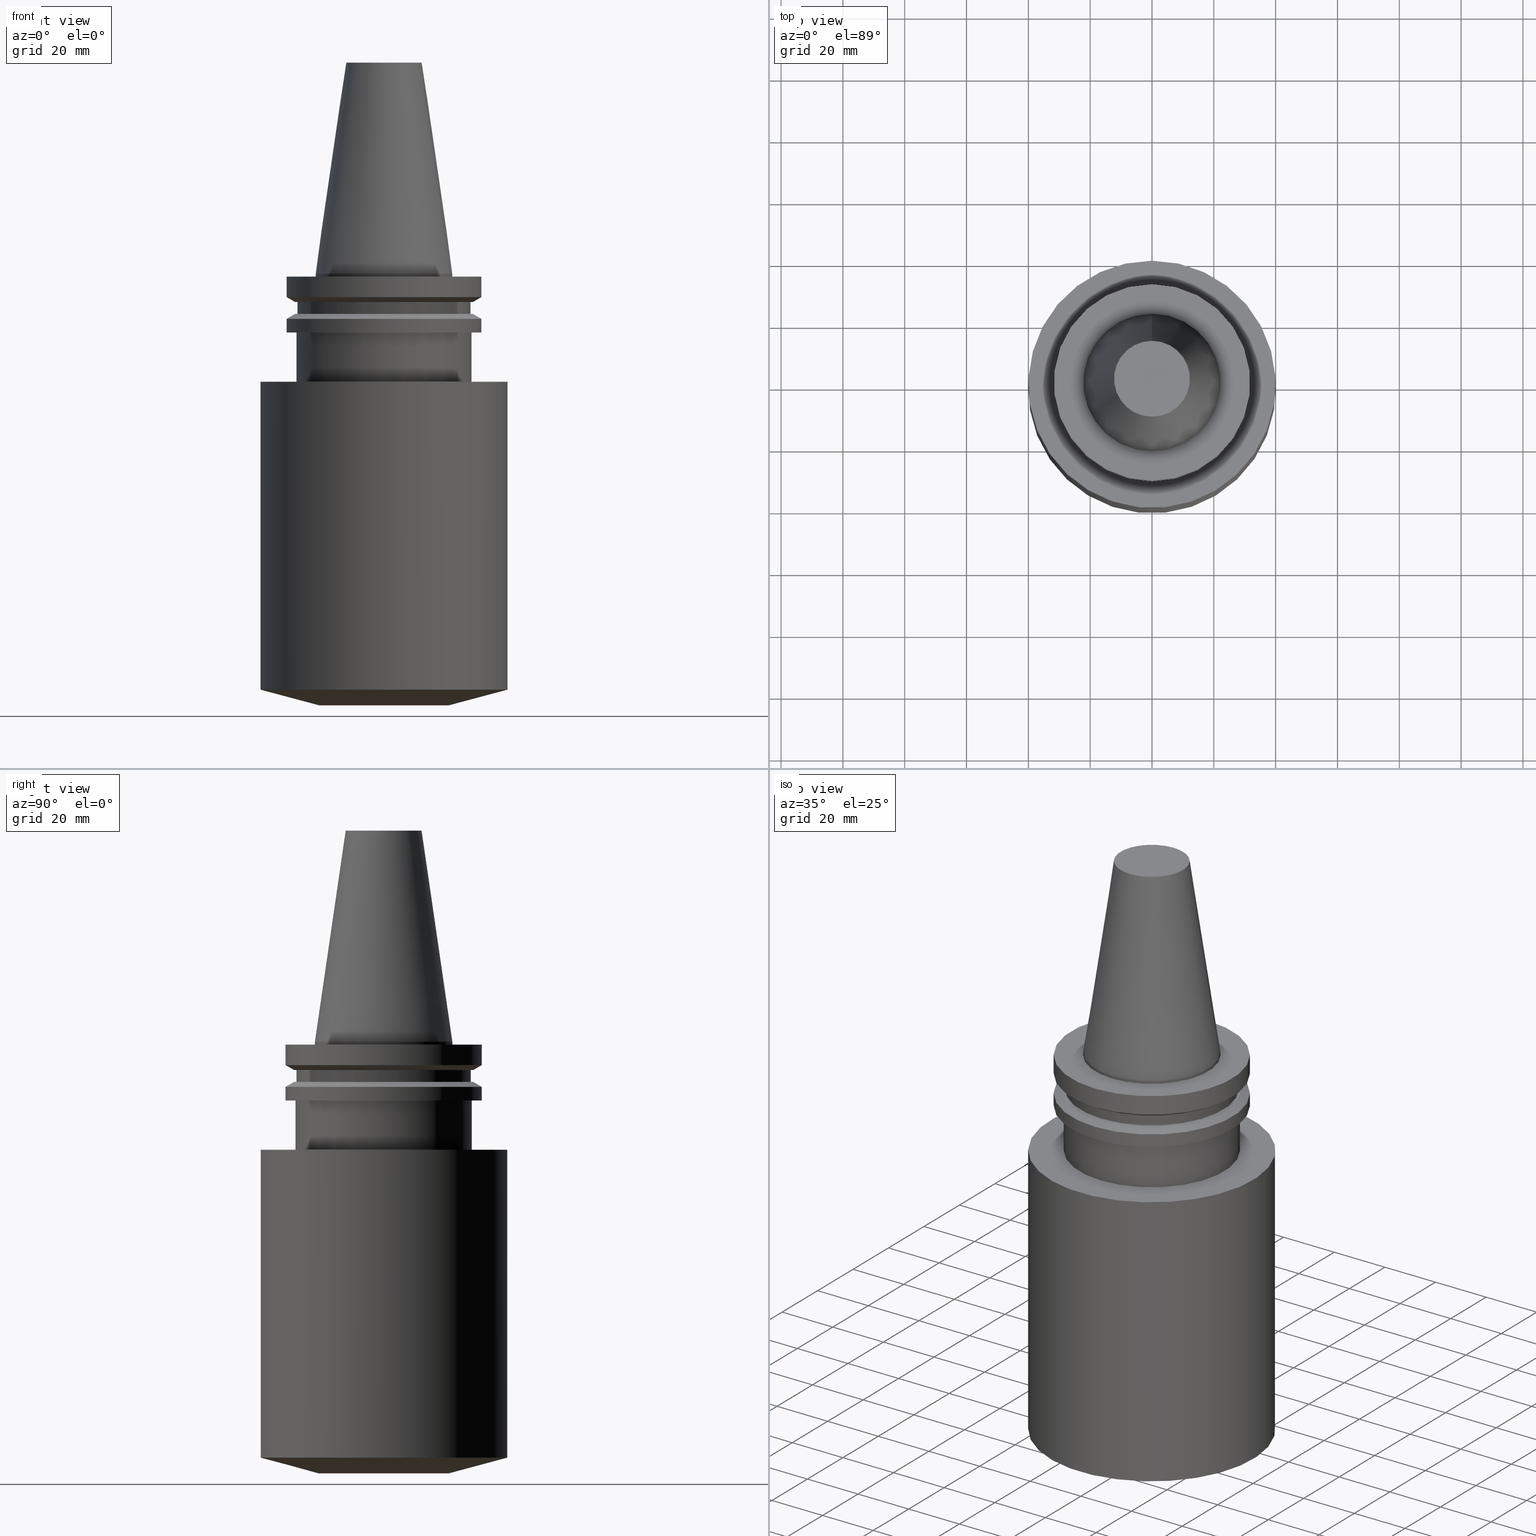
[diagram: canonical four-view strip — front | top / right | iso, engineering-drawing reading convention]
A machine part, canonical four-view strip (front | top / right | iso — engineering-drawing reading convention). The complete STEP part file that produces these views, byte-faithful:
ISO-10303-21;
HEADER;
FILE_DESCRIPTION((''),'1');
FILE_NAME('V:/01_Dxf_Field-HP\X2\FF71FF6FFF8CFF9F5916\X0\2013/BIGKAISER\X2\FF76FF80FF9BFF78FF9E63B28F095206\X0\_BKUS_201803/BCV40Y-BSL/BCV40Y-BSL1.500-5.5.stp','2018-03-13T06:29:31',(''),(''),'Spatial Interop R21 SP3','Kubotek KeyCreator 2011 V10.0.2 (22737)',' ');
FILE_SCHEMA(('automotive_design'));
ENDSEC;
DATA;
#1=MECHANICAL_DESIGN_GEOMETRIC_PRESENTATION_REPRESENTATION(' ',(#10,#11,#12,#13,#14,#15,#16,#17,#18,#19,#20,#21,#22,#23,#24,#25,#26,#27,#28,#29,#30,#31,#32,#33,#34,#35,#36,#37,#38,#39,#40,#41,#42,#43),#6);
#2=PRODUCT_DEFINITION_CONTEXT('',#44,'design');
#3=APPLICATION_PROTOCOL_DEFINITION('INTERNATIONAL STANDARD','automotive_design',1994,#44);
#4=PRODUCT_CATEGORY_RELATIONSHIP('NONE','NONE',#45,#46);
#5=SHAPE_DEFINITION_REPRESENTATION(#47,#48);
#6= (GEOMETRIC_REPRESENTATION_CONTEXT(3)GLOBAL_UNCERTAINTY_ASSIGNED_CONTEXT((#51))GLOBAL_UNIT_ASSIGNED_CONTEXT((#53,#54,#55))REPRESENTATION_CONTEXT('NONE','WORKSPACE'));
#10=STYLED_ITEM('',(#57),#58);
#11=STYLED_ITEM('',(#59,#60),#61);
#12=STYLED_ITEM('',(#62,#63),#64);
#13=STYLED_ITEM('',(#65),#66);
#14=STYLED_ITEM('',(#67,#68),#69);
#15=STYLED_ITEM('',(#70,#71),#72);
#16=STYLED_ITEM('',(#73,#74),#75);
#17=STYLED_ITEM('',(#76),#77);
#18=STYLED_ITEM('',(#78),#79);
#19=STYLED_ITEM('',(#80),#81);
#20=STYLED_ITEM('',(#82,#83),#84);
#21=STYLED_ITEM('',(#85),#86);
#22=STYLED_ITEM('',(#87),#88);
#23=STYLED_ITEM('',(#89,#90),#91);
#24=STYLED_ITEM('',(#92),#93);
#25=STYLED_ITEM('',(#94,#95),#96);
#26=STYLED_ITEM('',(#97,#98),#99);
#27=STYLED_ITEM('',(#100,#101),#102);
#28=STYLED_ITEM('',(#103),#104);
#29=STYLED_ITEM('',(#105),#106);
#30=STYLED_ITEM('',(#107),#108);
#31=STYLED_ITEM('',(#109),#110);
#32=STYLED_ITEM('',(#111,#112),#113);
#33=STYLED_ITEM('',(#114,#115),#116);
#34=STYLED_ITEM('',(#117,#118),#119);
#35=STYLED_ITEM('',(#120),#121);
#36=STYLED_ITEM('',(#122,#123),#124);
#37=STYLED_ITEM('',(#125),#126);
#38=STYLED_ITEM('',(#127,#128),#129);
#39=STYLED_ITEM('',(#130,#131),#132);
#40=STYLED_ITEM('',(#133,#134),#135);
#41=STYLED_ITEM('',(#136),#137);
#42=STYLED_ITEM('',(#138),#139);
#43=STYLED_ITEM('',(#140,#141),#142);
#44=APPLICATION_CONTEXT(' ');
#45=PRODUCT_CATEGORY('part','NONE');
#46=PRODUCT_RELATED_PRODUCT_CATEGORY('detail',' ',(#143));
#47=PRODUCT_DEFINITION_SHAPE('NONE','NONE',#144);
#48=ADVANCED_BREP_SHAPE_REPRESENTATION('Unnamed[1]',(#96,#145),#6);
#51=UNCERTAINTY_MEASURE_WITH_UNIT(LENGTH_MEASURE(1.0E-006),#53,'','');
#53= (CONVERSION_BASED_UNIT('MILLIMETRE',#148)LENGTH_UNIT()NAMED_UNIT(#151));
#54= (NAMED_UNIT(#153)PLANE_ANGLE_UNIT()SI_UNIT($,.RADIAN.));
#55= (NAMED_UNIT(#153)SOLID_ANGLE_UNIT()SI_UNIT($,.STERADIAN.));
#57=PRESENTATION_STYLE_ASSIGNMENT((#159));
#58=EDGE_CURVE('Unnamed[1]',#160,#160,#161,.T.);
#59=PRESENTATION_STYLE_ASSIGNMENT((#162));
#60=PRESENTATION_STYLE_ASSIGNMENT((#163));
#61=ADVANCED_FACE('Unnamed[1]',(#164,#165),#166,.T.);
#62=PRESENTATION_STYLE_ASSIGNMENT((#167));
#63=PRESENTATION_STYLE_ASSIGNMENT((#168));
#64=ADVANCED_FACE('Unnamed[1]',(#169,#170),#171,.T.);
#65=PRESENTATION_STYLE_ASSIGNMENT((#172));
#66=EDGE_CURVE('Unnamed[1]',#173,#173,#174,.T.);
#67=PRESENTATION_STYLE_ASSIGNMENT((#175));
#68=PRESENTATION_STYLE_ASSIGNMENT((#176));
#69=ADVANCED_FACE('Unnamed[1]',(#177,#178),#179,.T.);
#70=PRESENTATION_STYLE_ASSIGNMENT((#180));
#71=PRESENTATION_STYLE_ASSIGNMENT((#181));
#72=ADVANCED_FACE('Unnamed[1]',(#182,#183),#184,.T.);
#73=PRESENTATION_STYLE_ASSIGNMENT((#185));
#74=PRESENTATION_STYLE_ASSIGNMENT((#186));
#75=ADVANCED_FACE('Unnamed[1]',(#187,#188),#189,.T.);
#76=PRESENTATION_STYLE_ASSIGNMENT((#190));
#77=EDGE_CURVE('Unnamed[1]',#191,#191,#192,.T.);
#78=PRESENTATION_STYLE_ASSIGNMENT((#193));
#79=EDGE_CURVE('Unnamed[1]',#194,#194,#195,.T.);
#80=PRESENTATION_STYLE_ASSIGNMENT((#196));
#81=EDGE_CURVE('Unnamed[1]',#197,#197,#198,.T.);
#82=PRESENTATION_STYLE_ASSIGNMENT((#199));
#83=PRESENTATION_STYLE_ASSIGNMENT((#200));
#84=ADVANCED_FACE('Unnamed[1]',(#201),#202,.T.);
#85=PRESENTATION_STYLE_ASSIGNMENT((#203));
#86=EDGE_CURVE('Unnamed[1]',#204,#204,#205,.T.);
#87=PRESENTATION_STYLE_ASSIGNMENT((#206));
#88=EDGE_CURVE('Unnamed[1]',#207,#207,#208,.T.);
#89=PRESENTATION_STYLE_ASSIGNMENT((#209));
#90=PRESENTATION_STYLE_ASSIGNMENT((#210));
#91=ADVANCED_FACE('Unnamed[1]',(#211,#212),#213,.T.);
#92=PRESENTATION_STYLE_ASSIGNMENT((#214));
#93=EDGE_CURVE('Unnamed[1]',#215,#215,#216,.T.);
#94=PRESENTATION_STYLE_ASSIGNMENT((#217));
#95=PRESENTATION_STYLE_ASSIGNMENT((#218));
#96=MANIFOLD_SOLID_BREP('Unnamed[1]',#219);
#97=PRESENTATION_STYLE_ASSIGNMENT((#220));
#98=PRESENTATION_STYLE_ASSIGNMENT((#221));
#99=ADVANCED_FACE('Unnamed[1]',(#222,#223),#224,.T.);
#100=PRESENTATION_STYLE_ASSIGNMENT((#225));
#101=PRESENTATION_STYLE_ASSIGNMENT((#226));
#102=ADVANCED_FACE('Unnamed[1]',(#227,#228),#229,.T.);
#103=PRESENTATION_STYLE_ASSIGNMENT((#230));
#104=EDGE_CURVE('Unnamed[1]',#231,#231,#232,.T.);
#105=PRESENTATION_STYLE_ASSIGNMENT((#233));
#106=EDGE_CURVE('Unnamed[1]',#234,#234,#235,.T.);
#107=PRESENTATION_STYLE_ASSIGNMENT((#236));
#108=EDGE_CURVE('Unnamed[1]',#237,#237,#238,.T.);
#109=PRESENTATION_STYLE_ASSIGNMENT((#239));
#110=EDGE_CURVE('Unnamed[1]',#240,#240,#241,.T.);
#111=PRESENTATION_STYLE_ASSIGNMENT((#242));
#112=PRESENTATION_STYLE_ASSIGNMENT((#243));
#113=ADVANCED_FACE('Unnamed[1]',(#244,#245),#246,.T.);
#114=PRESENTATION_STYLE_ASSIGNMENT((#247));
#115=PRESENTATION_STYLE_ASSIGNMENT((#248));
#116=ADVANCED_FACE('Unnamed[1]',(#249,#250),#251,.T.);
#117=PRESENTATION_STYLE_ASSIGNMENT((#252));
#118=PRESENTATION_STYLE_ASSIGNMENT((#253));
#119=ADVANCED_FACE('Unnamed[1]',(#254,#255),#256,.T.);
#120=PRESENTATION_STYLE_ASSIGNMENT((#257));
#121=EDGE_CURVE('Unnamed[1]',#258,#258,#259,.T.);
#122=PRESENTATION_STYLE_ASSIGNMENT((#260));
#123=PRESENTATION_STYLE_ASSIGNMENT((#261));
#124=ADVANCED_FACE('Unnamed[1]',(#262,#263),#264,.T.);
#125=PRESENTATION_STYLE_ASSIGNMENT((#265));
#126=EDGE_CURVE('Unnamed[1]',#266,#266,#267,.T.);
#127=PRESENTATION_STYLE_ASSIGNMENT((#268));
#128=PRESENTATION_STYLE_ASSIGNMENT((#269));
#129=ADVANCED_FACE('Unnamed[1]',(#270,#271),#272,.T.);
#130=PRESENTATION_STYLE_ASSIGNMENT((#273));
#131=PRESENTATION_STYLE_ASSIGNMENT((#274));
#132=ADVANCED_FACE('Unnamed[1]',(#275,#276),#277,.T.);
#133=PRESENTATION_STYLE_ASSIGNMENT((#278));
#134=PRESENTATION_STYLE_ASSIGNMENT((#279));
#135=ADVANCED_FACE('Unnamed[1]',(#280),#281,.T.);
#136=PRESENTATION_STYLE_ASSIGNMENT((#282));
#137=EDGE_CURVE('Unnamed[1]',#283,#283,#284,.T.);
#138=PRESENTATION_STYLE_ASSIGNMENT((#285));
#139=EDGE_CURVE('Unnamed[1]',#286,#286,#287,.T.);
#140=PRESENTATION_STYLE_ASSIGNMENT((#288));
#141=PRESENTATION_STYLE_ASSIGNMENT((#289));
#142=ADVANCED_FACE('Unnamed[1]',(#290,#291),#292,.T.);
#143=PRODUCT('Unnamed[1]','Unnamed[1]','PART-Unnamed[1]-DESC',(#293));
#144=PRODUCT_DEFINITION('NONE','NONE',#294,#2);
#145=AXIS2_PLACEMENT_3D('',#295,#296,#297);
#148=LENGTH_MEASURE_WITH_UNIT(LENGTH_MEASURE(1.0),#298);
#151=DIMENSIONAL_EXPONENTS(1.0,0.0,0.0,0.0,0.0,0.0,0.0);
#153=DIMENSIONAL_EXPONENTS(0.0,0.0,0.0,0.0,0.0,0.0,0.0);
#159=CURVE_STYLE('',#299,POSITIVE_LENGTH_MEASURE(1000.0),#300);
#160=VERTEX_POINT('',#301);
#161=CIRCLE('',#302,28.95591319);
#162=SURFACE_STYLE_USAGE(.BOTH.,#303);
#163=CURVE_STYLE('',#304,POSITIVE_LENGTH_MEASURE(1000.0),#305);
#164=FACE_BOUND('',#306,.T.);
#165=FACE_BOUND('',#307,.T.);
#166=CYLINDRICAL_SURFACE('',#308,40.0000000000216);
#167=SURFACE_STYLE_USAGE(.BOTH.,#309);
#168=CURVE_STYLE('',#310,POSITIVE_LENGTH_MEASURE(1000.0),#311);
#169=FACE_OUTER_BOUND('',#312,.T.);
#170=FACE_BOUND('',#313,.T.);
#171=PLANE('',#314);
#172=CURVE_STYLE('',#315,POSITIVE_LENGTH_MEASURE(1000.0),#316);
#173=VERTEX_POINT('',#317);
#174=CIRCLE('',#318,31.75);
#175=SURFACE_STYLE_USAGE(.BOTH.,#319);
#176=CURVE_STYLE('',#320,POSITIVE_LENGTH_MEASURE(1000.0),#321);
#177=FACE_BOUND('',#322,.T.);
#178=FACE_BOUND('',#323,.T.);
#179=CONICAL_SURFACE('',#324,30.5000000000034,1.30899693899574);
#180=SURFACE_STYLE_USAGE(.BOTH.,#325);
#181=CURVE_STYLE('',#326,POSITIVE_LENGTH_MEASURE(1000.0),#327);
#182=FACE_BOUND('',#328,.T.);
#183=FACE_BOUND('',#329,.T.);
#184=CYLINDRICAL_SURFACE('',#330,28.18);
#185=SURFACE_STYLE_USAGE(.BOTH.,#331);
#186=CURVE_STYLE('',#332,POSITIVE_LENGTH_MEASURE(1000.0),#333);
#187=FACE_BOUND('',#334,.T.);
#188=FACE_BOUND('',#335,.T.);
#189=CYLINDRICAL_SURFACE('',#336,28.5000000000037);
#190=CURVE_STYLE('',#337,POSITIVE_LENGTH_MEASURE(1000.0),#338);
#191=VERTEX_POINT('',#339);
#192=CIRCLE('',#340,31.75);
#193=CURVE_STYLE('',#341,POSITIVE_LENGTH_MEASURE(1000.0),#342);
#194=VERTEX_POINT('',#343);
#195=CIRCLE('',#344,22.225);
#196=CURVE_STYLE('',#345,POSITIVE_LENGTH_MEASURE(1000.0),#346);
#197=VERTEX_POINT('',#347);
#198=CIRCLE('',#348,28.5000000000041);
#199=SURFACE_STYLE_USAGE(.BOTH.,#349);
#200=CURVE_STYLE('',#350,POSITIVE_LENGTH_MEASURE(1000.0),#351);
#201=FACE_OUTER_BOUND('',#352,.T.);
#202=PLANE('',#353);
#203=CURVE_STYLE('',#354,POSITIVE_LENGTH_MEASURE(1000.0),#355);
#204=VERTEX_POINT('',#356);
#205=CIRCLE('',#357,31.75);
#206=CURVE_STYLE('',#358,POSITIVE_LENGTH_MEASURE(1000.0),#359);
#207=VERTEX_POINT('',#360);
#208=CIRCLE('',#361,28.18);
#209=SURFACE_STYLE_USAGE(.BOTH.,#362);
#210=CURVE_STYLE('',#363,POSITIVE_LENGTH_MEASURE(1000.0),#364);
#211=FACE_BOUND('',#365,.T.);
#212=FACE_BOUND('',#366,.T.);
#213=CYLINDRICAL_SURFACE('',#367,31.75);
#214=CURVE_STYLE('',#368,POSITIVE_LENGTH_MEASURE(1000.0),#369);
#215=VERTEX_POINT('',#370);
#216=CIRCLE('',#371,12.2718750014769);
#217=SURFACE_STYLE_USAGE(.BOTH.,#372);
#218=CURVE_STYLE('',#373,POSITIVE_LENGTH_MEASURE(1000.0),#374);
#219=CLOSED_SHELL('',(#84,#119,#113,#124,#99,#142,#102,#72,#116,#129,#91,#132,#75,#64,#61,#69,#135));
#220=SURFACE_STYLE_USAGE(.BOTH.,#375);
#221=CURVE_STYLE('',#376,POSITIVE_LENGTH_MEASURE(1000.0),#377);
#222=FACE_BOUND('',#378,.T.);
#223=FACE_BOUND('',#379,.T.);
#224=CYLINDRICAL_SURFACE('',#380,31.75);
#225=SURFACE_STYLE_USAGE(.BOTH.,#381);
#226=CURVE_STYLE('',#382,POSITIVE_LENGTH_MEASURE(1000.0),#383);
#227=FACE_BOUND('',#384,.T.);
#228=FACE_OUTER_BOUND('',#385,.T.);
#229=PLANE('',#386);
#230=CURVE_STYLE('',#387,POSITIVE_LENGTH_MEASURE(1000.0),#388);
#231=VERTEX_POINT('',#389);
#232=CIRCLE('',#390,40.0000000000015);
#233=CURVE_STYLE('',#391,POSITIVE_LENGTH_MEASURE(1000.0),#392);
#234=VERTEX_POINT('',#393);
#235=CIRCLE('',#394,28.98016191);
#236=CURVE_STYLE('',#395,POSITIVE_LENGTH_MEASURE(1000.0),#396);
#237=VERTEX_POINT('',#397);
#238=CIRCLE('',#398,28.5000000000033);
#239=CURVE_STYLE('',#399,POSITIVE_LENGTH_MEASURE(1000.0),#400);
#240=VERTEX_POINT('',#401);
#241=CIRCLE('',#402,40.0000000000418);
#242=SURFACE_STYLE_USAGE(.BOTH.,#403);
#243=CURVE_STYLE('',#404,POSITIVE_LENGTH_MEASURE(1000.0),#405);
#244=FACE_BOUND('',#406,.T.);
#245=FACE_BOUND('',#407,.T.);
#246=CYLINDRICAL_SURFACE('',#408,22.225);
#247=SURFACE_STYLE_USAGE(.BOTH.,#409);
#248=CURVE_STYLE('',#410,POSITIVE_LENGTH_MEASURE(1000.0),#411);
#249=FACE_OUTER_BOUND('',#412,.T.);
#250=FACE_BOUND('',#413,.T.);
#251=PLANE('',#414);
#252=SURFACE_STYLE_USAGE(.BOTH.,#415);
#253=CURVE_STYLE('',#416,POSITIVE_LENGTH_MEASURE(1000.0),#417);
#254=FACE_BOUND('',#418,.T.);
#255=FACE_BOUND('',#419,.T.);
#256=CONICAL_SURFACE('',#420,17.2484375007384,0.144812498217751);
#257=CURVE_STYLE('',#421,POSITIVE_LENGTH_MEASURE(1000.0),#422);
#258=VERTEX_POINT('',#423);
#259=CIRCLE('',#424,28.18);
#260=SURFACE_STYLE_USAGE(.BOTH.,#425);
#261=CURVE_STYLE('',#426,POSITIVE_LENGTH_MEASURE(1000.0),#427);
#262=FACE_OUTER_BOUND('',#428,.T.);
#263=FACE_BOUND('',#429,.T.);
#264=PLANE('',#430);
#265=CURVE_STYLE('',#431,POSITIVE_LENGTH_MEASURE(1000.0),#432);
#266=VERTEX_POINT('',#433);
#267=CIRCLE('',#434,21.0000000000052);
#268=SURFACE_STYLE_USAGE(.BOTH.,#435);
#269=CURVE_STYLE('',#436,POSITIVE_LENGTH_MEASURE(1000.0),#437);
#270=FACE_BOUND('',#438,.T.);
#271=FACE_BOUND('',#439,.T.);
#272=CONICAL_SURFACE('',#440,30.352956595,1.04719755170464);
#273=SURFACE_STYLE_USAGE(.BOTH.,#441);
#274=CURVE_STYLE('',#442,POSITIVE_LENGTH_MEASURE(1000.0),#443);
#275=FACE_BOUND('',#444,.T.);
#276=FACE_OUTER_BOUND('',#445,.T.);
#277=PLANE('',#446);
#278=SURFACE_STYLE_USAGE(.BOTH.,#447);
#279=CURVE_STYLE('',#448,POSITIVE_LENGTH_MEASURE(1000.0),#449);
#280=FACE_OUTER_BOUND('',#450,.T.);
#281=PLANE('',#451);
#282=CURVE_STYLE('',#452,POSITIVE_LENGTH_MEASURE(1000.0),#453);
#283=VERTEX_POINT('',#454);
#284=CIRCLE('',#455,22.225);
#285=CURVE_STYLE('',#456,POSITIVE_LENGTH_MEASURE(1000.0),#457);
#286=VERTEX_POINT('',#458);
#287=CIRCLE('',#459,31.75);
#288=SURFACE_STYLE_USAGE(.BOTH.,#460);
#289=CURVE_STYLE('',#461,POSITIVE_LENGTH_MEASURE(1000.0),#462);
#290=FACE_BOUND('',#463,.T.);
#291=FACE_BOUND('',#464,.T.);
#292=CONICAL_SURFACE('',#465,30.365080955,1.04719755034994);
#293=PRODUCT_CONTEXT('',#44,'mechanical');
#294=PRODUCT_DEFINITION_FORMATION_WITH_SPECIFIED_SOURCE(' ','NONE',#143,.NOT_KNOWN.);
#295=CARTESIAN_POINT('',(0.0,0.0,0.0));
#296=DIRECTION('',(0.0,0.0,1.0));
#297=DIRECTION('',(1.0,0.0,0.0));
#298= (NAMED_UNIT(#151)LENGTH_UNIT()SI_UNIT(.MILLI.,.METRE.));
#299=DRAUGHTING_PRE_DEFINED_CURVE_FONT('continuous');
#300=COLOUR_RGB('',0.0,1.0,0.0);
#301=CARTESIAN_POINT('',(7.98469713044073E-016,28.95591319,-13.04));
#302=AXIS2_PLACEMENT_3D('',#467,#468,#469);
#303=SURFACE_SIDE_STYLE('',(#470));
#304=DRAUGHTING_PRE_DEFINED_CURVE_FONT('continuous');
#305=COLOUR_RGB('',0.0,1.0,0.0);
#306=EDGE_LOOP('',(#471));
#307=EDGE_LOOP('',(#472));
#308=AXIS2_PLACEMENT_3D('',#473,#474,#475);
#309=SURFACE_SIDE_STYLE('',(#476));
#310=DRAUGHTING_PRE_DEFINED_CURVE_FONT('continuous');
#311=COLOUR_RGB('',0.0,1.0,0.0);
#312=EDGE_LOOP('',(#477));
#313=EDGE_LOOP('',(#478));
#314=AXIS2_PLACEMENT_3D('',#479,#480,#481);
#315=DRAUGHTING_PRE_DEFINED_CURVE_FONT('continuous');
#316=COLOUR_RGB('',0.0,1.0,0.0);
#317=CARTESIAN_POINT('',(8.97247689112643E-016,31.75,-14.65316677));
#318=AXIS2_PLACEMENT_3D('',#482,#483,#484);
#319=SURFACE_SIDE_STYLE('',(#485));
#320=DRAUGHTING_PRE_DEFINED_CURVE_FONT('continuous');
#321=COLOUR_RGB('',0.0,1.0,0.0);
#322=EDGE_LOOP('',(#486));
#323=EDGE_LOOP('',(#487));
#324=AXIS2_PLACEMENT_3D('',#488,#489,#490);
#325=SURFACE_SIDE_STYLE('',(#491));
#326=DRAUGHTING_PRE_DEFINED_CURVE_FONT('continuous');
#327=COLOUR_RGB('',0.0,1.0,0.0);
#328=EDGE_LOOP('',(#492));
#329=EDGE_LOOP('',(#493));
#330=AXIS2_PLACEMENT_3D('',#494,#495,#496);
#331=SURFACE_SIDE_STYLE('',(#497));
#332=DRAUGHTING_PRE_DEFINED_CURVE_FONT('continuous');
#333=COLOUR_RGB('',0.0,1.0,0.0);
#334=EDGE_LOOP('',(#498));
#335=EDGE_LOOP('',(#499));
#336=AXIS2_PLACEMENT_3D('',#500,#501,#502);
#337=DRAUGHTING_PRE_DEFINED_CURVE_FONT('continuous');
#338=COLOUR_RGB('',0.0,1.0,0.0);
#339=CARTESIAN_POINT('',(1.16647607618785E-015,31.75,-19.05));
#340=AXIS2_PLACEMENT_3D('',#503,#504,#505);
#341=DRAUGHTING_PRE_DEFINED_CURVE_FONT('continuous');
#342=COLOUR_RGB('',0.0,1.0,0.0);
#343=CARTESIAN_POINT('',(6.12323399573674E-017,22.225,-0.999999999999997));
#344=AXIS2_PLACEMENT_3D('',#506,#507,#508);
#345=DRAUGHTING_PRE_DEFINED_CURVE_FONT('continuous');
#346=COLOUR_RGB('',0.0,1.0,0.0);
#347=CARTESIAN_POINT('',(1.16647607618785E-015,28.5000000000041,-19.05));
#348=AXIS2_PLACEMENT_3D('',#509,#510,#511);
#349=SURFACE_SIDE_STYLE('',(#512));
#350=DRAUGHTING_PRE_DEFINED_CURVE_FONT('continuous');
#351=COLOUR_RGB('',0.0,1.0,0.0);
#352=EDGE_LOOP('',(#513));
#353=AXIS2_PLACEMENT_3D('',#514,#515,#516);
#354=DRAUGHTING_PRE_DEFINED_CURVE_FONT('continuous');
#355=COLOUR_RGB('',0.0,1.0,0.0);
#356=CARTESIAN_POINT('',(4.65416804298617E-016,31.75,-7.60083323));
#357=AXIS2_PLACEMENT_3D('',#517,#518,#519);
#358=DRAUGHTING_PRE_DEFINED_CURVE_FONT('continuous');
#359=COLOUR_RGB('',0.0,1.0,0.0);
#360=CARTESIAN_POINT('',(7.98469713044073E-016,28.18,-13.04));
#361=AXIS2_PLACEMENT_3D('',#520,#521,#522);
#362=SURFACE_SIDE_STYLE('',(#523));
#363=DRAUGHTING_PRE_DEFINED_CURVE_FONT('continuous');
#364=COLOUR_RGB('',0.0,1.0,0.0);
#365=EDGE_LOOP('',(#524));
#366=EDGE_LOOP('',(#525));
#367=AXIS2_PLACEMENT_3D('',#526,#527,#528);
#368=DRAUGHTING_PRE_DEFINED_CURVE_FONT('continuous');
#369=COLOUR_RGB('',0.0,1.0,0.0);
#370=CARTESIAN_POINT('',(-4.17910720209034E-015,12.2718750014769,68.25));
#371=AXIS2_PLACEMENT_3D('',#529,#530,#531);
#372=SURFACE_SIDE_STYLE('',(#532));
#373=DRAUGHTING_PRE_DEFINED_CURVE_FONT('continuous');
#374=COLOUR_RGB('',0.0,1.0,0.0);
#375=SURFACE_SIDE_STYLE('',(#533));
#376=DRAUGHTING_PRE_DEFINED_CURVE_FONT('continuous');
#377=COLOUR_RGB('',0.0,1.0,0.0);
#378=EDGE_LOOP('',(#534));
#379=EDGE_LOOP('',(#535));
#380=AXIS2_PLACEMENT_3D('',#536,#537,#538);
#381=SURFACE_SIDE_STYLE('',(#539));
#382=DRAUGHTING_PRE_DEFINED_CURVE_FONT('continuous');
#383=COLOUR_RGB('',0.0,1.0,0.0);
#384=EDGE_LOOP('',(#540));
#385=EDGE_LOOP('',(#541));
#386=AXIS2_PLACEMENT_3D('',#542,#543,#544);
#387=DRAUGHTING_PRE_DEFINED_CURVE_FONT('continuous');
#388=COLOUR_RGB('',0.0,1.0,0.0);
#389=CARTESIAN_POINT('',(8.24242192724159E-015,40.0000000000016,-134.608965343808));
#390=AXIS2_PLACEMENT_3D('',#545,#546,#547);
#391=DRAUGHTING_PRE_DEFINED_CURVE_FONT('continuous');
#392=COLOUR_RGB('',0.0,1.0,0.0);
#393=CARTESIAN_POINT('',(5.63337527607782E-016,28.98016191,-9.2));
#394=AXIS2_PLACEMENT_3D('',#548,#549,#550);
#395=DRAUGHTING_PRE_DEFINED_CURVE_FONT('continuous');
#396=COLOUR_RGB('',0.0,1.0,0.0);
#397=CARTESIAN_POINT('',(2.14313189850795E-015,28.5000000000033,-35.0000000000013));
#398=AXIS2_PLACEMENT_3D('',#551,#552,#553);
#399=DRAUGHTING_PRE_DEFINED_CURVE_FONT('continuous');
#400=COLOUR_RGB('',0.0,1.0,0.0);
#401=CARTESIAN_POINT('',(2.14313189850798E-015,40.0000000000418,-35.0000000000019));
#402=AXIS2_PLACEMENT_3D('',#554,#555,#556);
#403=SURFACE_SIDE_STYLE('',(#557));
#404=DRAUGHTING_PRE_DEFINED_CURVE_FONT('continuous');
#405=COLOUR_RGB('',0.0,1.0,0.0);
#406=EDGE_LOOP('',(#558));
#407=EDGE_LOOP('',(#559));
#408=AXIS2_PLACEMENT_3D('',#560,#561,#562);
#409=SURFACE_SIDE_STYLE('',(#563));
#410=DRAUGHTING_PRE_DEFINED_CURVE_FONT('continuous');
#411=COLOUR_RGB('',0.0,1.0,0.0);
#412=EDGE_LOOP('',(#564));
#413=EDGE_LOOP('',(#565));
#414=AXIS2_PLACEMENT_3D('',#566,#567,#568);
#415=SURFACE_SIDE_STYLE('',(#569));
#416=DRAUGHTING_PRE_DEFINED_CURVE_FONT('continuous');
#417=COLOUR_RGB('',0.0,1.0,0.0);
#418=EDGE_LOOP('',(#570));
#419=EDGE_LOOP('',(#571));
#420=AXIS2_PLACEMENT_3D('',#572,#573,#574);
#421=DRAUGHTING_PRE_DEFINED_CURVE_FONT('continuous');
#422=COLOUR_RGB('',0.0,1.0,0.0);
#423=CARTESIAN_POINT('',(5.63337527607782E-016,28.18,-9.2));
#424=AXIS2_PLACEMENT_3D('',#575,#576,#577);
#425=SURFACE_SIDE_STYLE('',(#578));
#426=DRAUGHTING_PRE_DEFINED_CURVE_FONT('continuous');
#427=COLOUR_RGB('',0.0,1.0,0.0);
#428=EDGE_LOOP('',(#579));
#429=EDGE_LOOP('',(#580));
#430=AXIS2_PLACEMENT_3D('',#581,#582,#583);
#431=DRAUGHTING_PRE_DEFINED_CURVE_FONT('continuous');
#432=COLOUR_RGB('',0.0,1.0,0.0);
#433=CARTESIAN_POINT('',(8.55415789204418E-015,21.0000000000052,-139.699999999999));
#434=AXIS2_PLACEMENT_3D('',#584,#585,#586);
#435=SURFACE_SIDE_STYLE('',(#587));
#436=DRAUGHTING_PRE_DEFINED_CURVE_FONT('continuous');
#437=COLOUR_RGB('',0.0,1.0,0.0);
#438=EDGE_LOOP('',(#588));
#439=EDGE_LOOP('',(#589));
#440=AXIS2_PLACEMENT_3D('',#590,#591,#592);
#441=SURFACE_SIDE_STYLE('',(#593));
#442=DRAUGHTING_PRE_DEFINED_CURVE_FONT('continuous');
#443=COLOUR_RGB('',0.0,1.0,0.0);
#444=EDGE_LOOP('',(#594));
#445=EDGE_LOOP('',(#595));
#446=AXIS2_PLACEMENT_3D('',#596,#597,#598);
#447=SURFACE_SIDE_STYLE('',(#599));
#448=DRAUGHTING_PRE_DEFINED_CURVE_FONT('continuous');
#449=COLOUR_RGB('',0.0,1.0,0.0);
#450=EDGE_LOOP('',(#600));
#451=AXIS2_PLACEMENT_3D('',#601,#602,#603);
#452=DRAUGHTING_PRE_DEFINED_CURVE_FONT('continuous');
#453=COLOUR_RGB('',0.0,1.0,0.0);
#454=CARTESIAN_POINT('',(-2.73944275289641E-031,22.225,2.72177751110499E-015));
#455=AXIS2_PLACEMENT_3D('',#604,#605,#606);
#456=DRAUGHTING_PRE_DEFINED_CURVE_FONT('continuous');
#457=COLOUR_RGB('',0.0,1.0,0.0);
#458=CARTESIAN_POINT('',(6.12323399573673E-017,31.75,-0.999999999999996));
#459=AXIS2_PLACEMENT_3D('',#607,#608,#609);
#460=SURFACE_SIDE_STYLE('',(#610));
#461=DRAUGHTING_PRE_DEFINED_CURVE_FONT('continuous');
#462=COLOUR_RGB('',0.0,1.0,0.0);
#463=EDGE_LOOP('',(#611));
#464=EDGE_LOOP('',(#612));
#465=AXIS2_PLACEMENT_3D('',#613,#614,#615);
#467=CARTESIAN_POINT('',(7.98469713044074E-016,1.59693942608815E-015,-13.04));
#468=DIRECTION('',(6.12323399573677E-017,1.22464679914735E-016,-1.0));
#469=DIRECTION('',(-1.23259516440783E-032,1.0,1.22464679914735E-016));
#470=SURFACE_STYLE_FILL_AREA(#616);
#471=ORIENTED_EDGE('',*,*,#104,.F.);
#472=ORIENTED_EDGE('',*,*,#110,.T.);
#473=CARTESIAN_POINT('',(5.19277691287479E-015,1.03855538257496E-014,-84.8044826719051));
#474=DIRECTION('',(6.12323399573677E-017,1.22464679914735E-016,-1.0));
#475=DIRECTION('',(-1.23259516440783E-032,1.0,1.22464679914735E-016));
#476=SURFACE_STYLE_FILL_AREA(#617);
#477=ORIENTED_EDGE('',*,*,#110,.F.);
#478=ORIENTED_EDGE('',*,*,#108,.T.);
#479=CARTESIAN_POINT('',(2.14313189850797E-015,34.2500000000225,-35.0000000000016));
#480=DIRECTION('',(-6.12323399573677E-017,4.68351422049434E-014,1.0));
#481=DIRECTION('',(-2.86299819671398E-030,-1.0,4.68351422049434E-014));
#482=CARTESIAN_POINT('',(8.97247689112643E-016,1.79449537822529E-015,-14.65316677));
#483=DIRECTION('',(6.12323399573677E-017,1.22464679914735E-016,-1.0));
#484=DIRECTION('',(-1.23259516440783E-032,1.0,1.22464679914735E-016));
#485=SURFACE_STYLE_FILL_AREA(#618);
#486=ORIENTED_EDGE('',*,*,#126,.F.);
#487=ORIENTED_EDGE('',*,*,#104,.T.);
#488=CARTESIAN_POINT('',(8.39828990964289E-015,1.67965798192858E-014,-137.154482671904));
#489=DIRECTION('',(-6.12323399573677E-017,-1.22464679914735E-016,1.0));
#490=DIRECTION('',(-1.23259516440783E-032,1.0,1.22464679914735E-016));
#491=SURFACE_STYLE_FILL_AREA(#619);
#492=ORIENTED_EDGE('',*,*,#88,.F.);
#493=ORIENTED_EDGE('',*,*,#121,.T.);
#494=CARTESIAN_POINT('',(6.80903620325929E-016,1.36180724065186E-015,-11.12));
#495=DIRECTION('',(6.12323399573677E-017,1.22464679914735E-016,-1.0));
#496=DIRECTION('',(-1.23259516440783E-032,1.0,1.22464679914735E-016));
#497=SURFACE_STYLE_FILL_AREA(#620);
#498=ORIENTED_EDGE('',*,*,#108,.F.);
#499=ORIENTED_EDGE('',*,*,#81,.T.);
#500=CARTESIAN_POINT('',(1.6548039873479E-015,3.3096079746958E-015,-27.0250000000007));
#501=DIRECTION('',(6.12323399573677E-017,1.22464679914735E-016,-1.0));
#502=DIRECTION('',(-1.23259516440783E-032,1.0,1.22464679914735E-016));
#503=CARTESIAN_POINT('',(1.16647607618785E-015,2.33295215237571E-015,-19.05));
#504=DIRECTION('',(6.12323399573677E-017,1.22464679914735E-016,-1.0));
#505=DIRECTION('',(-1.23259516440783E-032,1.0,1.22464679914735E-016));
#506=CARTESIAN_POINT('',(6.12323399573677E-017,1.22464679914735E-016,-1.0));
#507=DIRECTION('',(6.12323399573677E-017,1.22464679914735E-016,-1.0));
#508=DIRECTION('',(-1.23259516440783E-032,1.0,1.22464679914735E-016));
#509=CARTESIAN_POINT('',(1.16647607618785E-015,2.33295215237571E-015,-19.05));
#510=DIRECTION('',(6.12323399573677E-017,1.22464679914735E-016,-1.0));
#511=DIRECTION('',(-1.23259516440783E-032,1.0,1.22464679914735E-016));
#512=SURFACE_STYLE_FILL_AREA(#621);
#513=ORIENTED_EDGE('',*,*,#93,.F.);
#514=CARTESIAN_POINT('',(-4.17910720209034E-015,6.13593750073843,68.25));
#515=DIRECTION('',(-6.12323399573677E-017,-1.22464679914735E-016,1.0));
#516=DIRECTION('',(1.23259516440783E-032,-1.0,-1.22464679914735E-016));
#517=CARTESIAN_POINT('',(4.65416804298617E-016,9.30833608597234E-016,-7.60083323000001));
#518=DIRECTION('',(6.12323399573677E-017,1.22464679914735E-016,-1.0));
#519=DIRECTION('',(-1.23259516440783E-032,1.0,1.22464679914735E-016));
#520=CARTESIAN_POINT('',(7.98469713044074E-016,1.59693942608815E-015,-13.04));
#521=DIRECTION('',(6.12323399573677E-017,1.22464679914735E-016,-1.0));
#522=DIRECTION('',(-1.23259516440783E-032,1.0,1.22464679914735E-016));
#523=SURFACE_STYLE_FILL_AREA(#622);
#524=ORIENTED_EDGE('',*,*,#77,.F.);
#525=ORIENTED_EDGE('',*,*,#66,.T.);
#526=CARTESIAN_POINT('',(1.03186188265025E-015,2.0637237653005E-015,-16.851583385));
#527=DIRECTION('',(6.12323399573677E-017,1.22464679914735E-016,-1.0));
#528=DIRECTION('',(-1.23259516440783E-032,1.0,1.22464679914735E-016));
#529=CARTESIAN_POINT('',(-4.17910720209034E-015,-8.35821440418068E-015,68.25));
#530=DIRECTION('',(6.12323399573677E-017,1.22464679914735E-016,-1.0));
#531=DIRECTION('',(-1.23259516440783E-032,1.0,1.22464679914735E-016));
#532=SURFACE_STYLE_FILL_AREA(#623);
#533=SURFACE_STYLE_FILL_AREA(#624);
#534=ORIENTED_EDGE('',*,*,#86,.F.);
#535=ORIENTED_EDGE('',*,*,#139,.T.);
#536=CARTESIAN_POINT('',(2.63324572127992E-016,5.26649144255983E-016,-4.30041661499999));
#537=DIRECTION('',(6.12323399573677E-017,1.22464679914735E-016,-1.0));
#538=DIRECTION('',(-1.23259516440783E-032,1.0,1.22464679914735E-016));
#539=SURFACE_STYLE_FILL_AREA(#625);
#540=ORIENTED_EDGE('',*,*,#121,.F.);
#541=ORIENTED_EDGE('',*,*,#106,.T.);
#542=CARTESIAN_POINT('',(5.63337527607782E-016,28.580080955,-9.2));
#543=DIRECTION('',(6.12323399573677E-017,1.22464679914735E-016,-1.0));
#544=DIRECTION('',(-1.23259516440783E-032,1.0,1.22464679914735E-016));
#545=CARTESIAN_POINT('',(8.24242192724159E-015,1.64848438544832E-014,-134.608965343808));
#546=DIRECTION('',(6.12323399573676E-017,1.22464679914735E-016,-1.0));
#547=DIRECTION('',(-1.23259516440783E-032,1.0,1.22464679914735E-016));
#548=CARTESIAN_POINT('',(5.63337527607784E-016,1.12667505521557E-015,-9.20000000000002));
#549=DIRECTION('',(6.12323399573677E-017,1.22464679914735E-016,-1.0));
#550=DIRECTION('',(-1.23259516440783E-032,1.0,1.22464679914735E-016));
#551=CARTESIAN_POINT('',(2.14313189850795E-015,4.2862637970159E-015,-35.0000000000013));
#552=DIRECTION('',(6.12323399573677E-017,1.22464679914735E-016,-1.0));
#553=DIRECTION('',(-1.23259516440783E-032,1.0,1.22464679914735E-016));
#554=CARTESIAN_POINT('',(2.14313189850798E-015,4.28626379701597E-015,-35.0000000000019));
#555=DIRECTION('',(6.12323399573677E-017,1.22464679914735E-016,-1.0));
#556=DIRECTION('',(-1.23259516440783E-032,1.0,1.22464679914735E-016));
#557=SURFACE_STYLE_FILL_AREA(#626);
#558=ORIENTED_EDGE('',*,*,#79,.F.);
#559=ORIENTED_EDGE('',*,*,#137,.T.);
#560=CARTESIAN_POINT('',(3.06161699786838E-017,6.12323399573676E-017,-0.5));
#561=DIRECTION('',(6.12323399573677E-017,1.22464679914735E-016,-1.0));
#562=DIRECTION('',(-1.23259516440783E-032,1.0,1.22464679914735E-016));
#563=SURFACE_STYLE_FILL_AREA(#627);
#564=ORIENTED_EDGE('',*,*,#58,.F.);
#565=ORIENTED_EDGE('',*,*,#88,.T.);
#566=CARTESIAN_POINT('',(7.98469713044073E-016,28.567956595,-13.04));
#567=DIRECTION('',(-6.12323399573677E-017,-1.22464679914735E-016,1.0));
#568=DIRECTION('',(1.23259516440783E-032,-1.0,-1.22464679914735E-016));
#569=SURFACE_STYLE_FILL_AREA(#628);
#570=ORIENTED_EDGE('',*,*,#137,.F.);
#571=ORIENTED_EDGE('',*,*,#93,.T.);
#572=CARTESIAN_POINT('',(-2.08955360104517E-015,-4.17910720209034E-015,34.125));
#573=DIRECTION('',(6.12323399573677E-017,1.22464679914735E-016,-1.0));
#574=DIRECTION('',(-1.23259516440783E-032,1.0,1.22464679914735E-016));
#575=CARTESIAN_POINT('',(5.63337527607784E-016,1.12667505521557E-015,-9.20000000000002));
#576=DIRECTION('',(6.12323399573677E-017,1.22464679914735E-016,-1.0));
#577=DIRECTION('',(-1.23259516440783E-032,1.0,1.22464679914735E-016));
#578=SURFACE_STYLE_FILL_AREA(#629);
#579=ORIENTED_EDGE('',*,*,#139,.F.);
#580=ORIENTED_EDGE('',*,*,#79,.T.);
#581=CARTESIAN_POINT('',(6.12323399573673E-017,26.9875,-0.999999999999997));
#582=DIRECTION('',(-6.12323399573677E-017,-1.22464679914735E-016,1.0));
#583=DIRECTION('',(1.23259516440783E-032,-1.0,-1.22464679914735E-016));
#584=CARTESIAN_POINT('',(8.55415789204418E-015,1.71083157840884E-014,-139.699999999999));
#585=DIRECTION('',(6.12323399573677E-017,1.22464679914735E-016,-1.0));
#586=DIRECTION('',(-1.23259516440783E-032,1.0,1.22464679914735E-016));
#587=SURFACE_STYLE_FILL_AREA(#630);
#588=ORIENTED_EDGE('',*,*,#66,.F.);
#589=ORIENTED_EDGE('',*,*,#58,.T.);
#590=CARTESIAN_POINT('',(8.47858701078359E-016,1.69571740215672E-015,-13.846583385));
#591=DIRECTION('',(6.12323399573677E-017,1.22464679914735E-016,-1.0));
#592=DIRECTION('',(-1.23259516440783E-032,1.0,1.22464679914735E-016));
#593=SURFACE_STYLE_FILL_AREA(#631);
#594=ORIENTED_EDGE('',*,*,#81,.F.);
#595=ORIENTED_EDGE('',*,*,#77,.T.);
#596=CARTESIAN_POINT('',(1.16647607618785E-015,30.1250000000021,-19.05));
#597=DIRECTION('',(6.12323399573677E-017,1.22464679914735E-016,-1.0));
#598=DIRECTION('',(-1.23259516440783E-032,1.0,1.22464679914735E-016));
#599=SURFACE_STYLE_FILL_AREA(#632);
#600=ORIENTED_EDGE('',*,*,#126,.T.);
#601=CARTESIAN_POINT('',(8.55415789204418E-015,10.5000000000026,-139.699999999999));
#602=DIRECTION('',(6.12323399573677E-017,-2.58436478964688E-015,-1.0));
#603=DIRECTION('',(1.5341955064274E-031,1.0,-2.58436478964688E-015));
#604=CARTESIAN_POINT('',(0.0,0.0,0.0));
#605=DIRECTION('',(6.12323399573677E-017,1.22464679914735E-016,-1.0));
#606=DIRECTION('',(-1.23259516440783E-032,1.0,1.22464679914735E-016));
#607=CARTESIAN_POINT('',(6.12323399573677E-017,1.22464679914735E-016,-1.0));
#608=DIRECTION('',(6.12323399573677E-017,1.22464679914735E-016,-1.0));
#609=DIRECTION('',(-1.23259516440783E-032,1.0,1.22464679914735E-016));
#610=SURFACE_STYLE_FILL_AREA(#633);
#611=ORIENTED_EDGE('',*,*,#106,.F.);
#612=ORIENTED_EDGE('',*,*,#86,.T.);
#613=CARTESIAN_POINT('',(5.143771659532E-016,1.0287543319064E-015,-8.40041661500001));
#614=DIRECTION('',(-6.12323399573677E-017,-1.22464679914735E-016,1.0));
#615=DIRECTION('',(-1.23259516440783E-032,1.0,1.22464679914735E-016));
#616=FILL_AREA_STYLE('',(#634));
#617=FILL_AREA_STYLE('',(#635));
#618=FILL_AREA_STYLE('',(#636));
#619=FILL_AREA_STYLE('',(#637));
#620=FILL_AREA_STYLE('',(#638));
#621=FILL_AREA_STYLE('',(#639));
#622=FILL_AREA_STYLE('',(#640));
#623=FILL_AREA_STYLE('',(#641));
#624=FILL_AREA_STYLE('',(#642));
#625=FILL_AREA_STYLE('',(#643));
#626=FILL_AREA_STYLE('',(#644));
#627=FILL_AREA_STYLE('',(#645));
#628=FILL_AREA_STYLE('',(#646));
#629=FILL_AREA_STYLE('',(#647));
#630=FILL_AREA_STYLE('',(#648));
#631=FILL_AREA_STYLE('',(#649));
#632=FILL_AREA_STYLE('',(#650));
#633=FILL_AREA_STYLE('',(#651));
#634=FILL_AREA_STYLE_COLOUR('',#652);
#635=FILL_AREA_STYLE_COLOUR('',#653);
#636=FILL_AREA_STYLE_COLOUR('',#654);
#637=FILL_AREA_STYLE_COLOUR('',#655);
#638=FILL_AREA_STYLE_COLOUR('',#656);
#639=FILL_AREA_STYLE_COLOUR('',#657);
#640=FILL_AREA_STYLE_COLOUR('',#658);
#641=FILL_AREA_STYLE_COLOUR('',#659);
#642=FILL_AREA_STYLE_COLOUR('',#660);
#643=FILL_AREA_STYLE_COLOUR('',#661);
#644=FILL_AREA_STYLE_COLOUR('',#662);
#645=FILL_AREA_STYLE_COLOUR('',#663);
#646=FILL_AREA_STYLE_COLOUR('',#664);
#647=FILL_AREA_STYLE_COLOUR('',#665);
#648=FILL_AREA_STYLE_COLOUR('',#666);
#649=FILL_AREA_STYLE_COLOUR('',#667);
#650=FILL_AREA_STYLE_COLOUR('',#668);
#651=FILL_AREA_STYLE_COLOUR('',#669);
#652=COLOUR_RGB('',0.0,1.0,0.0);
#653=COLOUR_RGB('',0.0,1.0,0.0);
#654=COLOUR_RGB('',0.0,1.0,0.0);
#655=COLOUR_RGB('',0.0,1.0,0.0);
#656=COLOUR_RGB('',0.0,1.0,0.0);
#657=COLOUR_RGB('',0.0,1.0,0.0);
#658=COLOUR_RGB('',0.0,1.0,0.0);
#659=COLOUR_RGB('',0.0,1.0,0.0);
#660=COLOUR_RGB('',0.0,1.0,0.0);
#661=COLOUR_RGB('',0.0,1.0,0.0);
#662=COLOUR_RGB('',0.0,1.0,0.0);
#663=COLOUR_RGB('',0.0,1.0,0.0);
#664=COLOUR_RGB('',0.0,1.0,0.0);
#665=COLOUR_RGB('',0.0,1.0,0.0);
#666=COLOUR_RGB('',0.0,1.0,0.0);
#667=COLOUR_RGB('',0.0,1.0,0.0);
#668=COLOUR_RGB('',0.0,1.0,0.0);
#669=COLOUR_RGB('',0.0,1.0,0.0);
ENDSEC;
END-ISO-10303-21;
